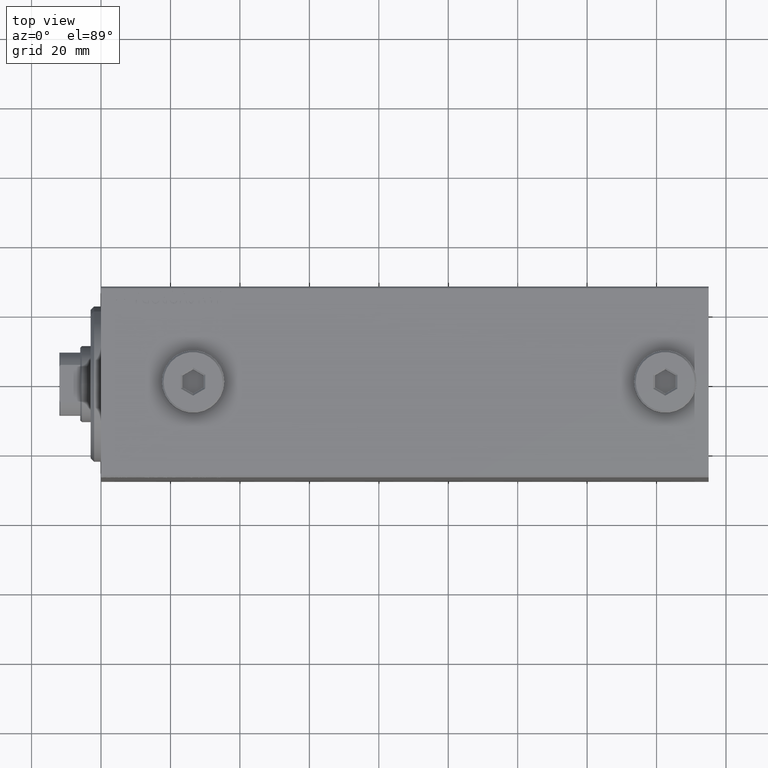
[diagram: clean part render]
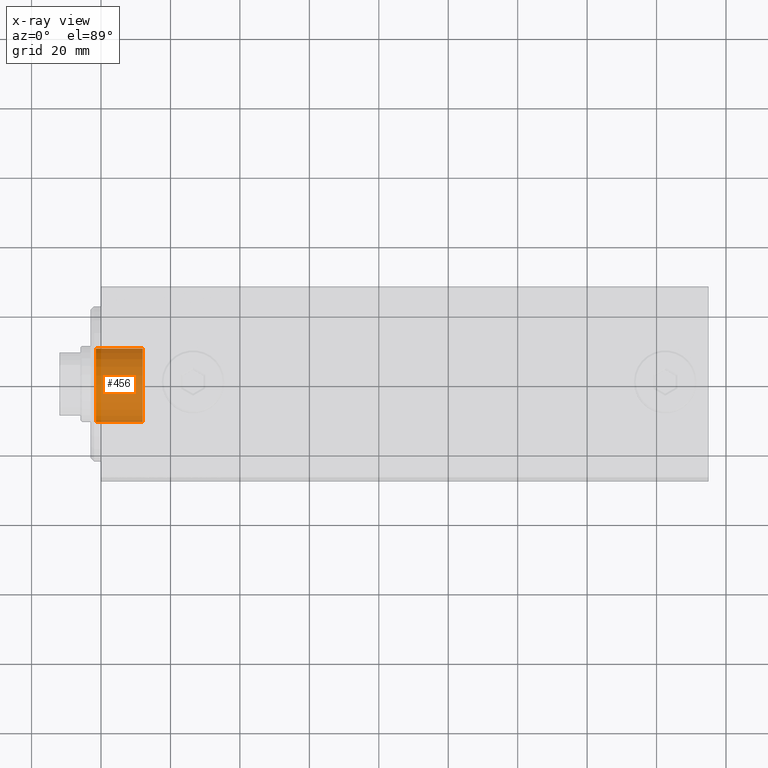
[diagram: x-ray — body ghosted, one internal face saturated and labeled with its STEP entity id]
A machine part, top view, then the same camera in x-ray: the body is ghosted and one INTERNAL B-rep face — a face not visible from any outside direction — is saturated and labeled: STEP entity #456.
In plain terms, the highlighted cylindrical surface (partial cylindrical patch) has radius 11 mm, axis along (-1, 0, 0).
Its self-contained STEP definition (entity closure, byte-faithful):
#456 = ADVANCED_FACE ( 'NONE', ( #6455 ), #45056, .F. ) ;
#1470 = AXIS2_PLACEMENT_3D ( 'NONE', #1526, #21861, #43343 ) ;
#1526 = CARTESIAN_POINT ( 'NONE',  ( 1.499999999999999556, 0.000000000000000000, 0.000000000000000000 ) ) ;
#1968 = AXIS2_PLACEMENT_3D ( 'NONE', #6029, #3036, #27699 ) ;
#3036 = DIRECTION ( 'NONE',  ( 1.000000000000000000, -0.000000000000000000, -0.000000000000000000 ) ) ;
#4407 = CIRCLE ( 'NONE', #1470, 11.00000000000000000 ) ;
#4858 = EDGE_CURVE ( 'NONE', #33356, #26924, #5769, .T. ) ;
#5551 = DIRECTION ( 'NONE',  ( 1.000000000000000000, -0.000000000000000000, -0.000000000000000000 ) ) ;
#5769 = CIRCLE ( 'NONE', #12350, 11.00000000000000000 ) ;
#6029 = CARTESIAN_POINT ( 'NONE',  ( -12.00000000000000000, 0.000000000000000000, 0.000000000000000000 ) ) ;
#6455 = FACE_OUTER_BOUND ( 'NONE', #43654, .T. ) ;
#6644 = DIRECTION ( 'NONE',  ( 1.000000000000000000, 0.000000000000000000, 0.000000000000000000 ) ) ;
#7835 = DIRECTION ( 'NONE',  ( 1.000000000000000000, -0.000000000000000000, -0.000000000000000000 ) ) ;
#8812 = CARTESIAN_POINT ( 'NONE',  ( -12.00000000000000000, 1.347111479062088405E-15, 11.00000000000000000 ) ) ;
#11732 = EDGE_CURVE ( 'NONE', #33356, #39084, #32291, .T. ) ;
#12172 = CARTESIAN_POINT ( 'NONE',  ( -12.00000000000000000, 0.000000000000000000, -11.00000000000000000 ) ) ;
#12305 = EDGE_CURVE ( 'NONE', #26924, #24866, #36850, .T. ) ;
#12350 = AXIS2_PLACEMENT_3D ( 'NONE', #31756, #6644, #21243 ) ;
#17297 = ORIENTED_EDGE ( 'NONE', *, *, #11732, .T. ) ;
#20773 = CARTESIAN_POINT ( 'NONE',  ( -12.00000000000000000, 0.000000000000000000, -11.00000000000000000 ) ) ;
#21089 = ORIENTED_EDGE ( 'NONE', *, *, #30219, .T. ) ;
#21243 = DIRECTION ( 'NONE',  ( 0.000000000000000000, 0.000000000000000000, -1.000000000000000000 ) ) ;
#21861 = DIRECTION ( 'NONE',  ( 1.000000000000000000, 0.000000000000000000, 0.000000000000000000 ) ) ;
#24866 = VERTEX_POINT ( 'NONE', #35734 ) ;
#26632 = ORIENTED_EDGE ( 'NONE', *, *, #4858, .F. ) ;
#26924 = VERTEX_POINT ( 'NONE', #20773 ) ;
#27699 = DIRECTION ( 'NONE',  ( 0.000000000000000000, 0.000000000000000000, -1.000000000000000000 ) ) ;
#28441 = VECTOR ( 'NONE', #5551, 1000.000000000000000 ) ;
#30219 = EDGE_CURVE ( 'NONE', #39084, #24866, #4407, .T. ) ;
#31756 = CARTESIAN_POINT ( 'NONE',  ( -12.00000000000000000, 0.000000000000000000, 0.000000000000000000 ) ) ;
#31835 = CARTESIAN_POINT ( 'NONE',  ( -12.00000000000000000, 1.347111479062088405E-15, 11.00000000000000000 ) ) ;
#32291 = LINE ( 'NONE', #31835, #35745 ) ;
#33356 = VERTEX_POINT ( 'NONE', #8812 ) ;
#35734 = CARTESIAN_POINT ( 'NONE',  ( 1.499999999999999556, 0.000000000000000000, -11.00000000000000000 ) ) ;
#35745 = VECTOR ( 'NONE', #7835, 1000.000000000000000 ) ;
#36850 = LINE ( 'NONE', #12172, #28441 ) ;
#37919 = CARTESIAN_POINT ( 'NONE',  ( 1.499999999999999556, 1.347111479062088405E-15, 11.00000000000000000 ) ) ;
#38145 = ORIENTED_EDGE ( 'NONE', *, *, #12305, .F. ) ;
#39084 = VERTEX_POINT ( 'NONE', #37919 ) ;
#43343 = DIRECTION ( 'NONE',  ( 0.000000000000000000, 0.000000000000000000, -1.000000000000000000 ) ) ;
#43654 = EDGE_LOOP ( 'NONE', ( #26632, #17297, #21089, #38145 ) ) ;
#45056 = CYLINDRICAL_SURFACE ( 'NONE', #1968, 11.00000000000000000 ) ;